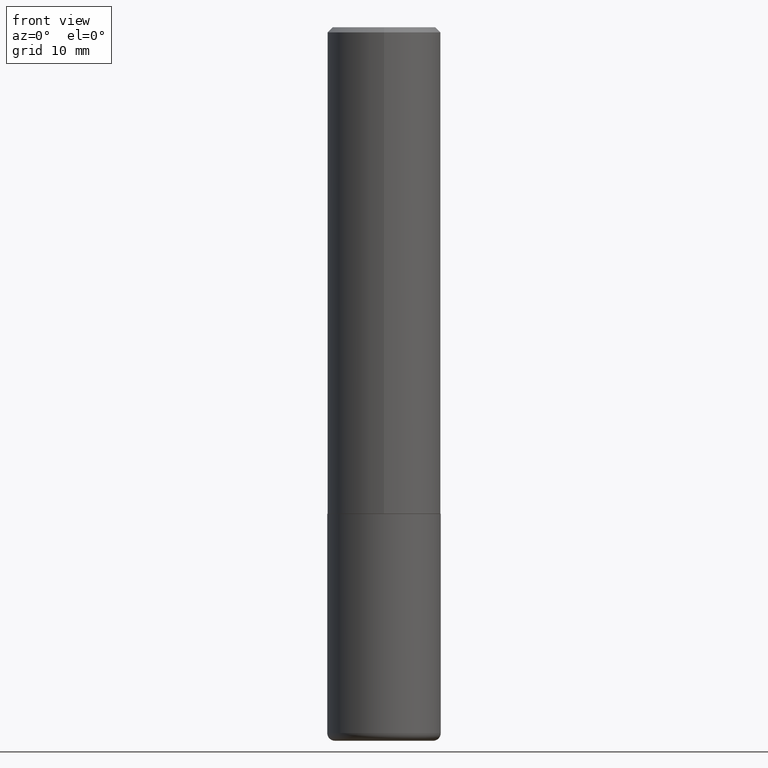
[diagram: clean part render]
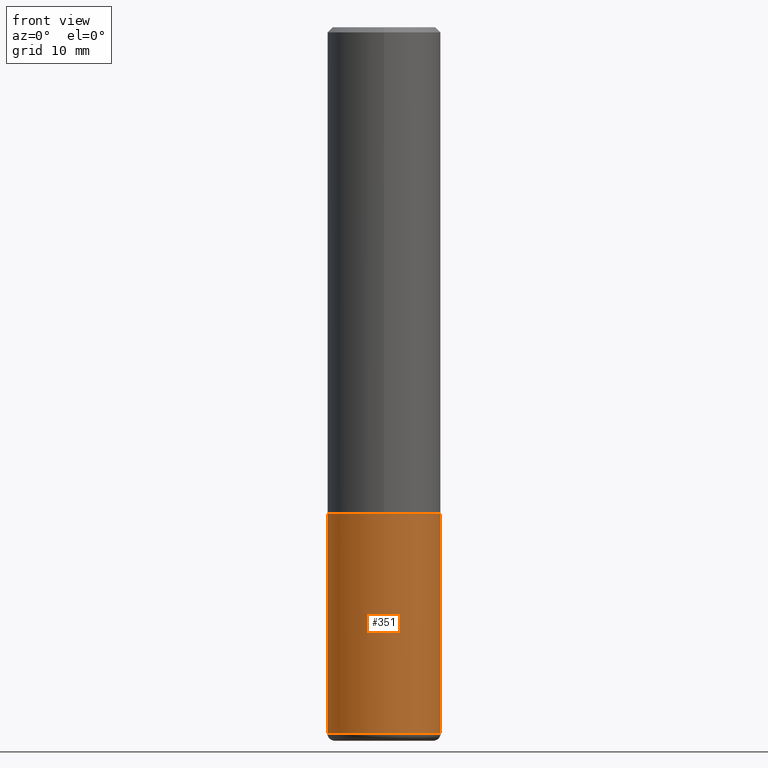
[diagram: same view with one face highlighted and labeled with its STEP entity id]
A machine part, front view. The second image highlights one B-rep face of the part: STEP entity #351.
In plain terms, the highlighted cylindrical surface (partial cylindrical patch) has radius 5.5563 mm, axis along (-0, 0, 1).
Its self-contained STEP definition (entity closure, byte-faithful):
#10 = CARTESIAN_POINT ( 'NONE',  ( 0.2187500000000000278, -1.527523085743871040E-15, 1.066663669705361025E-29 ) ) ;
#13 = DIRECTION ( 'NONE',  ( 1.000000000000000000, -6.982962677686267499E-15, 0.000000000000000000 ) ) ;
#23 = EDGE_CURVE ( 'NONE', #82, #402, #382, .T. ) ;
#27 = CARTESIAN_POINT ( 'NONE',  ( -0.2187500000000000278, 1.554312234475219354E-15, -1.076017050993260762E-29 ) ) ;
#68 = LINE ( 'NONE', #10, #309 ) ;
#70 = ORIENTED_EDGE ( 'NONE', *, *, #114, .T. ) ;
#75 = DIRECTION ( 'NONE',  ( -2.445468806185136597E-29, 3.491481338843145583E-15, 1.000000000000000000 ) ) ;
#82 = VERTEX_POINT ( 'NONE', #367 ) ;
#99 = CARTESIAN_POINT ( 'NONE',  ( 6.651675152823572126E-29, -9.496829241653356490E-15, -2.719999999999999751 ) ) ;
#106 = CYLINDRICAL_SURFACE ( 'NONE', #216, 0.2187500000000000278 ) ;
#109 = CARTESIAN_POINT ( 'NONE',  ( 0.2187499999999998890, -1.102435232739722812E-14, -2.719999999999999751 ) ) ;
#114 = EDGE_CURVE ( 'NONE', #175, #402, #68, .T. ) ;
#115 = CARTESIAN_POINT ( 'NONE',  ( 4.585254011597131119E-29, -6.546527510330898707E-15, -1.875000000000000000 ) ) ;
#175 = VERTEX_POINT ( 'NONE', #109 ) ;
#193 = DIRECTION ( 'NONE',  ( -2.445468806185136877E-29, 3.491481338843145188E-15, 1.000000000000000000 ) ) ;
#216 = AXIS2_PLACEMENT_3D ( 'NONE', #274, #75, #408 ) ;
#244 = AXIS2_PLACEMENT_3D ( 'NONE', #115, #348, #13 ) ;
#267 = CARTESIAN_POINT ( 'NONE',  ( 0.2187500000000000000, -8.074050596074770339E-15, -1.875000000000000000 ) ) ;
#271 = CIRCLE ( 'NONE', #301, 0.2187500000000000278 ) ;
#274 = CARTESIAN_POINT ( 'NONE',  ( 0.000000000000000000, 0.000000000000000000, 0.000000000000000000 ) ) ;
#278 = VECTOR ( 'NONE', #193, 39.37007874015748143 ) ;
#299 = LINE ( 'NONE', #27, #278 ) ;
#301 = AXIS2_PLACEMENT_3D ( 'NONE', #99, #329, #356 ) ;
#309 = VECTOR ( 'NONE', #386, 39.37007874015748143 ) ;
#310 = FACE_OUTER_BOUND ( 'NONE', #410, .T. ) ;
#323 = ORIENTED_EDGE ( 'NONE', *, *, #23, .F. ) ;
#325 = CARTESIAN_POINT ( 'NONE',  ( -0.2187499999999998890, -7.942517007178138911E-15, -2.719999999999999751 ) ) ;
#329 = DIRECTION ( 'NONE',  ( -2.445468806185136597E-29, 3.491481338843145583E-15, 1.000000000000000000 ) ) ;
#348 = DIRECTION ( 'NONE',  ( -2.445468806185136597E-29, 3.491481338843145583E-15, 1.000000000000000000 ) ) ;
#351 = ADVANCED_FACE ( 'NONE', ( #310 ), #106, .T. ) ;
#356 = DIRECTION ( 'NONE',  ( 1.000000000000000000, -6.982962677686271444E-15, 0.000000000000000000 ) ) ;
#357 = ORIENTED_EDGE ( 'NONE', *, *, #372, .F. ) ;
#367 = CARTESIAN_POINT ( 'NONE',  ( -0.2187500000000000000, -6.467366141516908442E-15, -1.875000000000000000 ) ) ;
#368 = ORIENTED_EDGE ( 'NONE', *, *, #385, .T. ) ;
#372 = EDGE_CURVE ( 'NONE', #381, #82, #299, .T. ) ;
#381 = VERTEX_POINT ( 'NONE', #325 ) ;
#382 = CIRCLE ( 'NONE', #244, 0.2187500000000000000 ) ;
#385 = EDGE_CURVE ( 'NONE', #381, #175, #271, .T. ) ;
#386 = DIRECTION ( 'NONE',  ( -2.445468806185136877E-29, 3.491481338843145188E-15, 1.000000000000000000 ) ) ;
#402 = VERTEX_POINT ( 'NONE', #267 ) ;
#408 = DIRECTION ( 'NONE',  ( 1.000000000000000000, -6.982962677686266711E-15, 4.876176775795935232E-29 ) ) ;
#410 = EDGE_LOOP ( 'NONE', ( #357, #368, #70, #323 ) ) ;